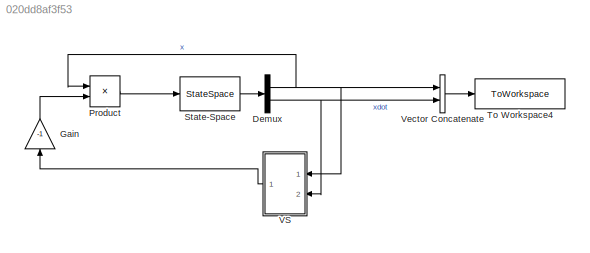
MODEL slx_020dd8af3f53
KIND model
CONFIG AbsTol = auto
CONFIG EnableMultiTasking = off
CONFIG FixedStep = auto
CONFIG MaxStep = auto
CONFIG MinStep = auto
CONFIG RelTol = 1e-3
CONFIG SampleTimeConstraint = Unconstrained
CONFIG SolverName = VariableStepAuto
CONFIG StartTime = 0.0
CONFIG StopTime = 10.0
BLOCK [Demux] Demux
  Outputs = 2
  Ports = [1, 2]
BLOCK [Gain] Gain
  Gain = -1
  NameLocation = right
BLOCK [Product] Product
  Ports = [2, 1]
BLOCK [StateSpace] State-Space
  A = [0 1; 0 ksi]
  B = [0; 1]
  C = eye(2)
  D = zeros(2, 1)
  InitialCondition = init_conds
  Ports = [1, 1]
BLOCK [ToWorkspace] To Workspace4
  FixptAsFi = on
  MaxDataPoints = inf
  Ports = [1]
  SampleTime = 0.0001
  SaveFormat = Timeseries
  VariableName = states
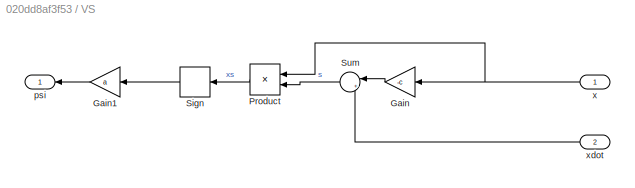
BLOCK [SubSystem] VS
  NameLocation = top
  Ports = [2, 1]
  RequestExecContextInheritance = off
BLOCK [Gain] VS/Gain
  Gain = -c
  NameLocation = top
BLOCK [Gain] VS/Gain1
  Gain = a
  NameLocation = top
BLOCK [Product] VS/Product
  NameLocation = top
  Ports = [2, 1]
BLOCK [Signum] VS/Sign
  NameLocation = top
BLOCK [Sum] VS/Sum
  Inputs = |++
  NameLocation = top
  Ports = [2, 1]
BLOCK [Outport] VS/psi
BLOCK [Inport] VS/x
  NameLocation = top
BLOCK [Inport] VS/xdot
  NameLocation = top
  Port = 2
BLOCK [Concatenate] Vector Concatenate
  Ports = [2, 1]
NET Demux:1 -> Product:1, VS:1, Vector Concatenate:1
NET Demux:2 -> VS:2, Vector Concatenate:2
LINE Gain:1 -> Product:2
LINE Product:1 -> State-Space:1
LINE State-Space:1 -> Demux:1
LINE VS/Gain1:1 -> VS/psi:1
LINE VS/Gain:1 -> VS/Sum:1
LINE VS/Product:1 -> VS/Sign:1
LINE VS/Sign:1 -> VS/Gain1:1
LINE VS/Sum:1 -> VS/Product:2
NET VS/x:1 -> VS/Gain:1, VS/Product:1
LINE VS/xdot:1 -> VS/Sum:2
LINE VS:1 -> Gain:1
LINE Vector Concatenate:1 -> To Workspace4:1
note: NET lines group one-source signal fan-out (src -> all destinations, sorted); 1:1 wires keep LINE
